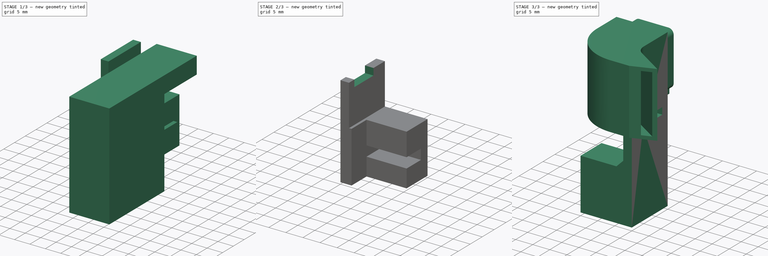
[diagram: build sequence overview — one tinted view per stage of 3, left to right]
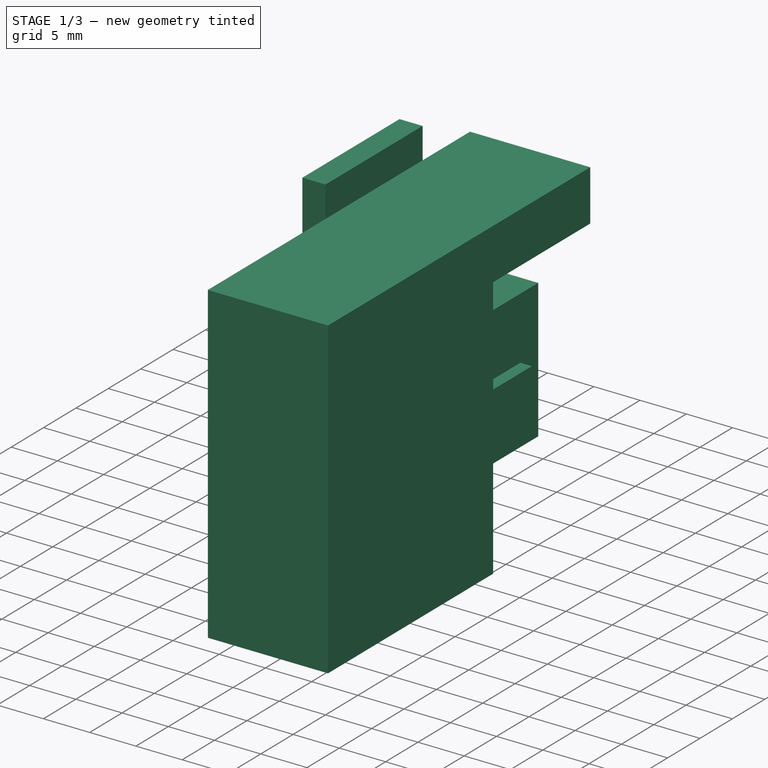
[diagram: stage 1 of 3 — iso view after this stage's code; geometry added in this stage tinted green]
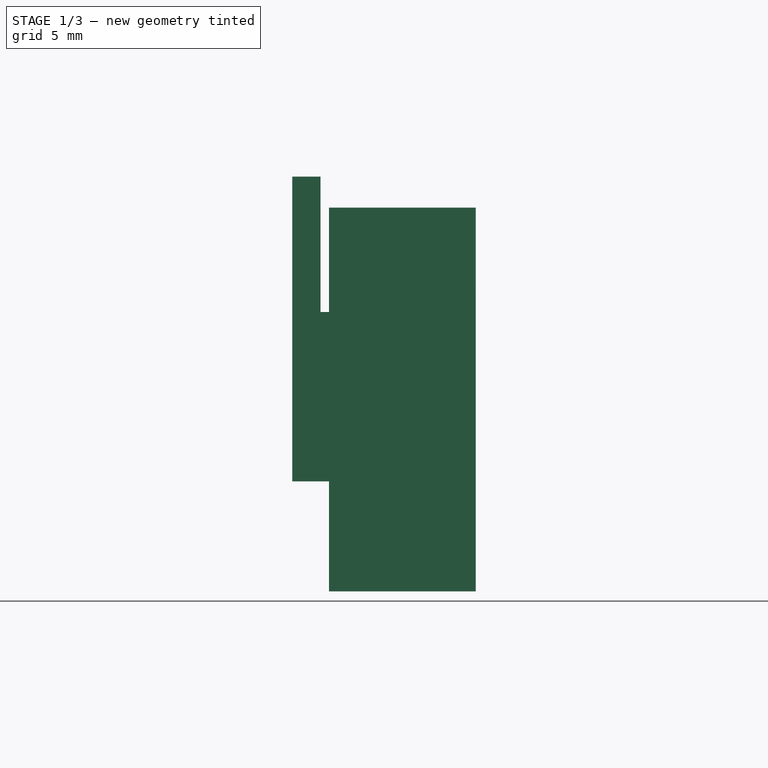
[diagram: stage 1 of 3 — front view after this stage's code; geometry added in this stage tinted green]
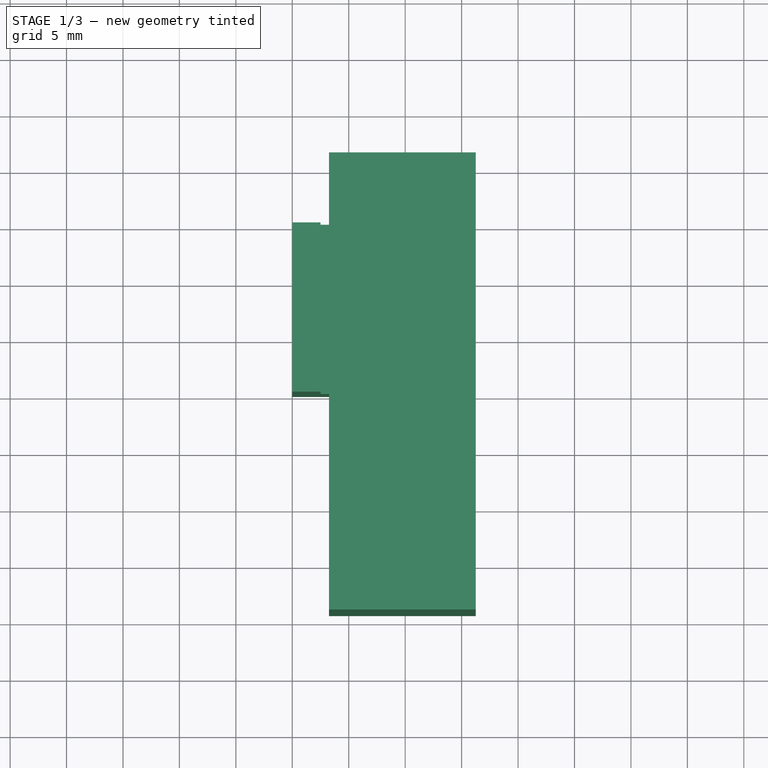
[diagram: stage 1 of 3 — top view after this stage's code; geometry added in this stage tinted green]
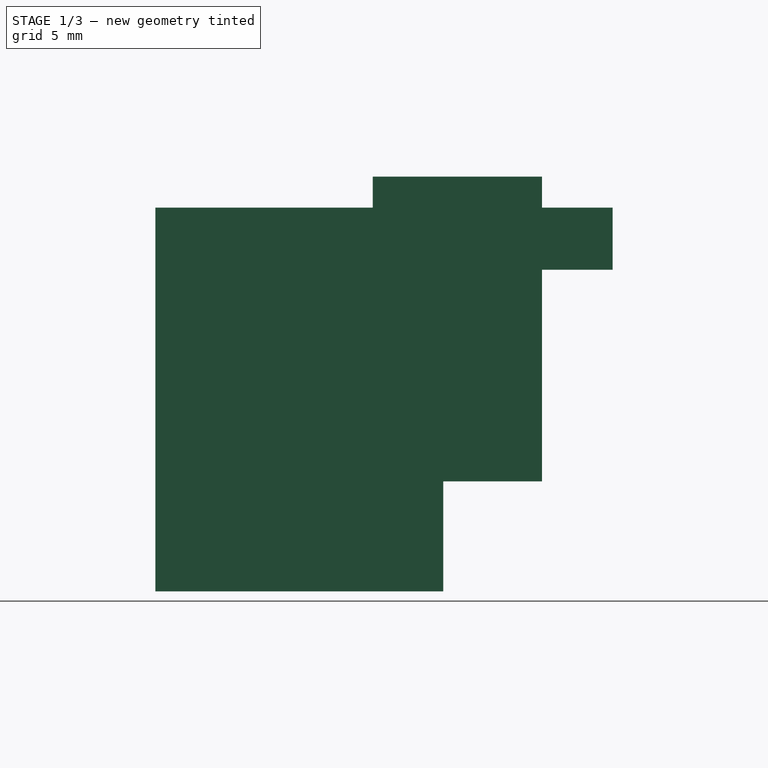
[diagram: stage 1 of 3 — right view after this stage's code; geometry added in this stage tinted green]
FCSTD DOCUMENT  (FreeCAD 0.15R4671 (Git))
Label: AutoBedLevel
License: CreativeCommons Attribution-ShareAlike
LicenseURL: http://creativecommons.org/licenses/by-sa/4.0/
objects: Sketcher::SketchObject×3, PartDesign::Pad×2, Part::Feature×1, Part::Offset×1, Part::Cut×1, PartDesign::Pocket×1, Part::FeaturePython×1, Part::MultiFuse×1, Part::Chamfer×1
note: 15 computed .brp shape members not serialized (recipe doc carries the construction recipe); baked Part::Feature solids carry a one-line shape summary decoded from their .brp

FEATURE [Sketcher::SketchObject] Sketch
  Placement = pos=(0,0,0) rot=(1,0,0;1.5708rad)
  sketch-geometry (6):
    g0: LineSegment StartX=0 StartY=0 StartZ=0 EndX=2.5 EndY=0 EndZ=0
    g1: LineSegment StartX=2.5 StartY=0 StartZ=0 EndX=2.5 EndY=-12 EndZ=0
    g2: LineSegment StartX=2.5 StartY=-12 StartZ=0 EndX=15 EndY=-12 EndZ=0
    g3: LineSegment StartX=15 StartY=-12 StartZ=0 EndX=15 EndY=-27 EndZ=0
    g4: LineSegment StartX=15 StartY=-27 StartZ=0 EndX=0 EndY=-27 EndZ=0
    g5: LineSegment StartX=0 StartY=-27 StartZ=0 EndX=0 EndY=0 EndZ=0
  constraints (17):
    c: Horizontal(g0)
    c: Coincident(g0,g1)
    c: Vertical(g1)
    c: Coincident(g1,g2)
    c: Coincident(g2,g3)
    c: Vertical(g3)
    c: Coincident(g3,g4)
    c: Coincident(g4,g5)
    c: Coincident(g5,g0)
    c: Vertical(g5)
    c: Horizontal(g4)
    c: Horizontal(g2)
    c: Coincident(g0,g-1)
    c: DistanceX(g0) = 2.5
    c: DistanceY(g5) = 27
    c: DistanceY(g1) = -12
    c: DistanceX(g4) = -15
FEATURE [PartDesign::Pad] Pad
  Length = 15
  Length2 = 100
  Placement = pos=(0,0,0) rot=(1,0,0;1.5708rad)
  Sketch = -> Sketch
  Type = 0
FEATURE [Sketcher::SketchObject] Sketch001
  Placement = pos=(3.5,6,-3) rot=(0.57735,0.57735,0.57735;2.0944rad)
  sketch-geometry (10):
    g0: LineSegment StartX=-40 StartY=-33.5 StartZ=0 EndX=-15 EndY=-33.5 EndZ=0
    g1: LineSegment StartX=-15 StartY=-33.5 StartZ=0 EndX=-15 EndY=-18.5 EndZ=0
    g2: LineSegment StartX=-15 StartY=-18.5 StartZ=0 EndX=-9 EndY=-18.5 EndZ=0
    g3: LineSegment StartX=-9 StartY=-18.5 StartZ=0 EndX=-9 EndY=-16 EndZ=0
    g4: LineSegment StartX=-9 StartY=-16 StartZ=0 EndX=-15 EndY=-16 EndZ=0
    g5: LineSegment StartX=-15 StartY=-16 StartZ=0 EndX=-15 EndY=-5 EndZ=0
    g6: LineSegment StartX=-15 StartY=-5 StartZ=0 EndX=0 EndY=-5 EndZ=0
    g7: LineSegment StartX=0 StartY=-5 StartZ=0 EndX=0 EndY=0 EndZ=0
    g8: LineSegment StartX=0 StartY=0 StartZ=0 EndX=-40 EndY=0 EndZ=0
    g9: LineSegment StartX=-40 StartY=0 StartZ=0 EndX=-40 EndY=-33.5 EndZ=0
  constraints (30):
    c: Horizontal(g0)
    c: Coincident(g0,g1)
    c: Vertical(g1)
    c: Coincident(g1,g2)
    c: Horizontal(g2)
    c: Coincident(g2,g3)
    c: Coincident(g3,g4)
    c: Horizontal(g4)
    c: Coincident(g4,g5)
    c: Vertical(g5)
    c: Horizontal(g6)
    c: Coincident(g6,g7)
    c: Vertical(g7)
    c: Coincident(g7,g8)
    c: Horizontal(g8)
    c: Coincident(g8,g9)
    c: Coincident(g9,g0)
    c: Vertical(g9)
    c: DistanceY(g1) = 15
    c: DistanceY(g3) = 2.5
    c: DistanceY(g5) = 11
    c: DistanceY(g7) = 5
    c: DistanceX(g8) = -40
    c: PointOnObject(g8,g-1)
    c: Vertical(g3)
    c: DistanceX(g0) = 25
    c: Coincident(g7,g-1)
    c: Coincident(g5,g6)
    c: DistanceX(g6) = 15
    c: DistanceX(g4) = -6
FEATURE [PartDesign::Pad] Pad001
  Length = 12.5
  Length2 = 100
  Placement = pos=(3.5,6,-3) rot=(0.57735,0.57735,0.57735;2.0944rad)
  Sketch = -> Sketch001
  Type = 0
FEATURE [Part::Feature] Tobera002_solid  label="Tobera"
  shape: bbox 25 x 26 x 19 mm, 2032 faces (baked)
FEATURE [Part::Offset] Offset
  Fill = false
  Intersection = false
  Join = 2
  Mode = 0
  SelfIntersection = false
  Source = -> Pad001
  Value = 0.25
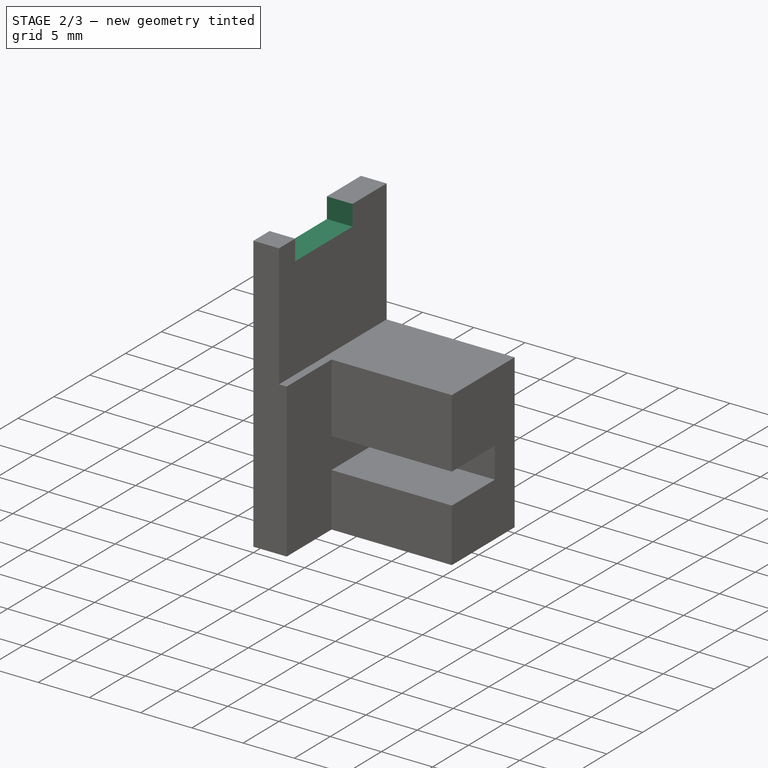
[diagram: stage 2 of 3 — iso view after this stage's code; geometry added in this stage tinted green]
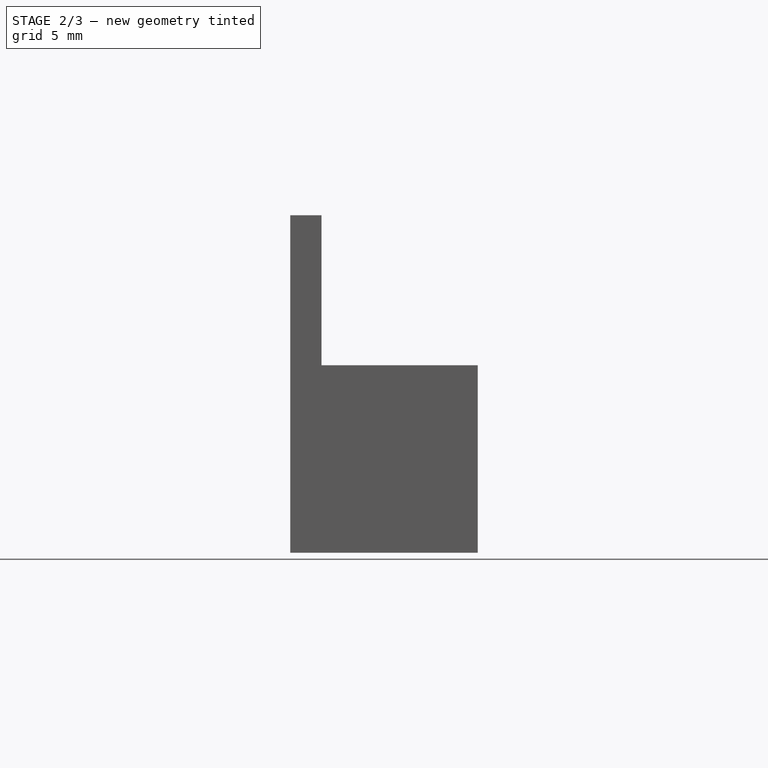
[diagram: stage 2 of 3 — front view after this stage's code; geometry added in this stage tinted green]
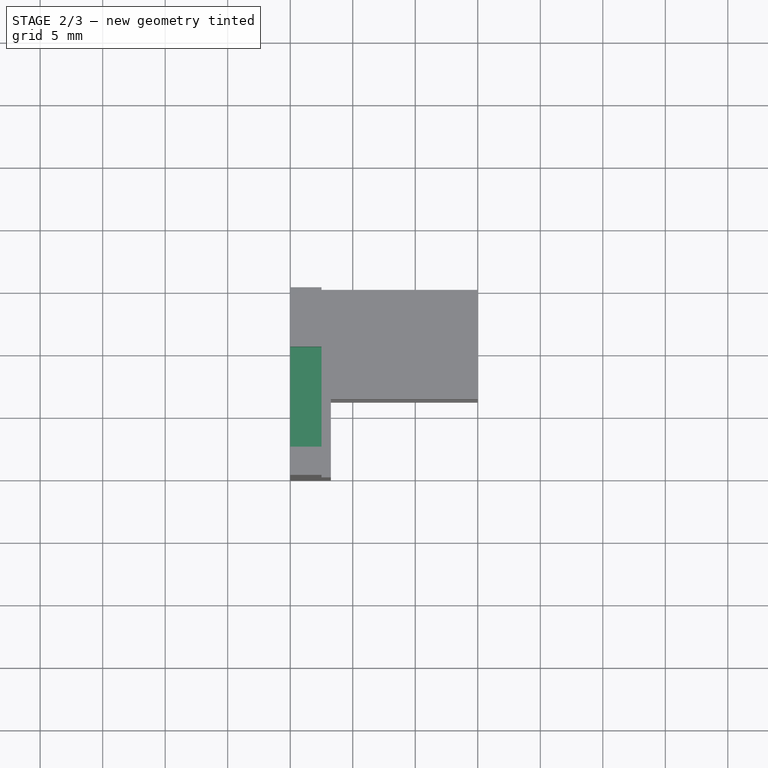
[diagram: stage 2 of 3 — top view after this stage's code; geometry added in this stage tinted green]
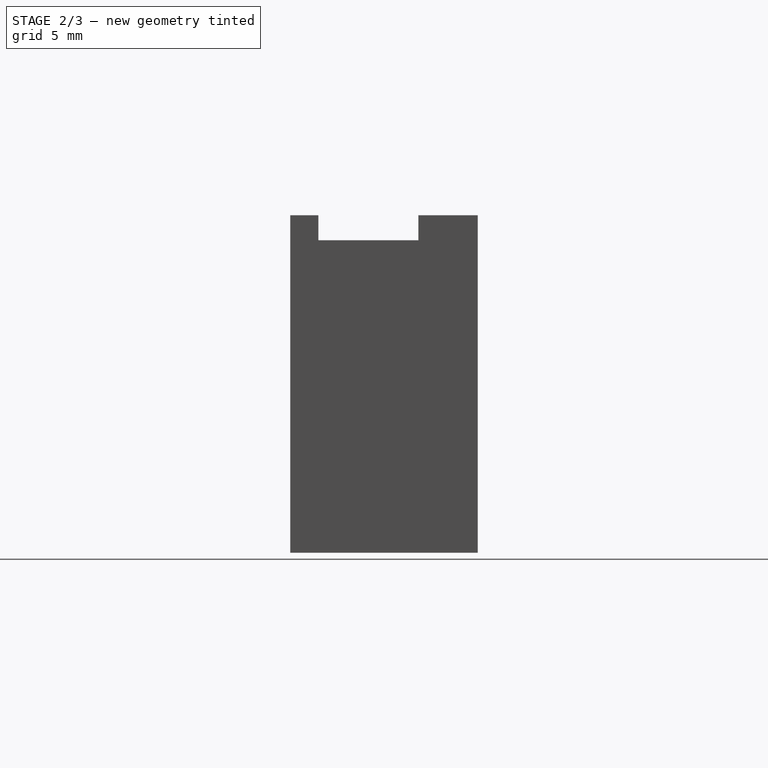
[diagram: stage 2 of 3 — right view after this stage's code; geometry added in this stage tinted green]
FEATURE [Part::Cut] Cut
  Base = -> Pad
  Tool = -> Offset
FEATURE [Sketcher::SketchObject] Sketch002
  ExternalGeometry = -> [Cut]
  Placement = pos=(2.5,0,0) rot=(0.57735,0.57735,0.57735;2.0944rad)
  Support = -> Cut [Face3]
  sketch-geometry (4):
    g0: LineSegment StartX=-12.75 StartY=0 StartZ=0 EndX=-4.75 EndY=0 EndZ=0
    g1: LineSegment StartX=-4.75 StartY=0 StartZ=0 EndX=-4.75 EndY=-2 EndZ=0
    g2: LineSegment StartX=-4.75 StartY=-2 StartZ=0 EndX=-12.75 EndY=-2 EndZ=0
    g3: LineSegment StartX=-12.75 StartY=-2 StartZ=0 EndX=-12.75 EndY=0 EndZ=0
  constraints (12):
    c: Coincident(g0,g1)
    c: Coincident(g1,g2)
    c: Coincident(g2,g3)
    c: Coincident(g3,g0)
    c: Horizontal(g0)
    c: Horizontal(g2)
    c: Vertical(g1)
    c: Vertical(g3)
    c: PointOnObject(g0,g-3)
    c: DistanceX(g0,g-3) = -2.25
    c: DistanceX(g2) = -8
    c: DistanceY(g1) = -2
FEATURE [PartDesign::Pocket] Pocket
  Length = 5
  Sketch = -> Sketch002
  Type = 0
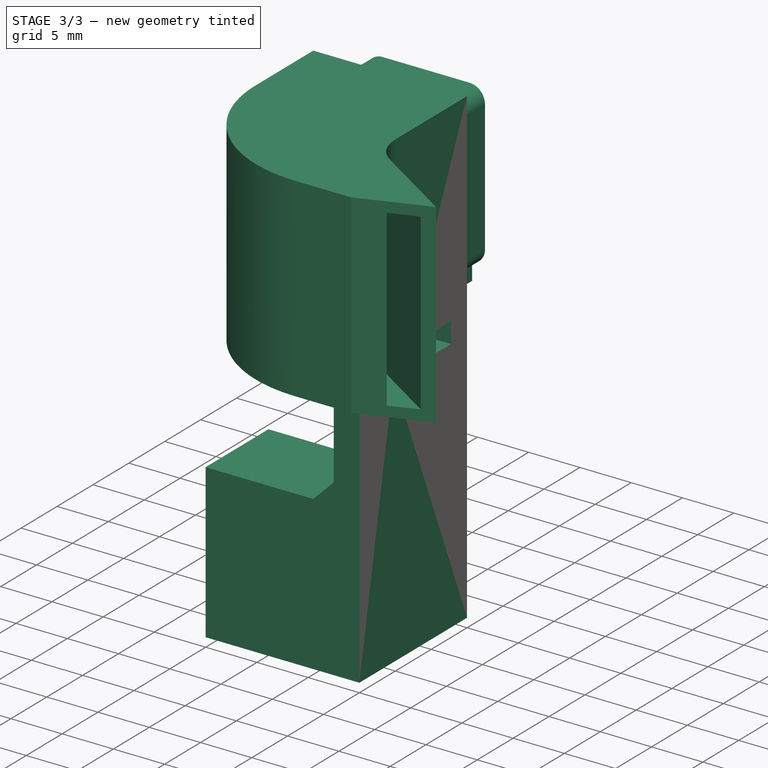
[diagram: stage 3 of 3 — iso view after this stage's code; geometry added in this stage tinted green]
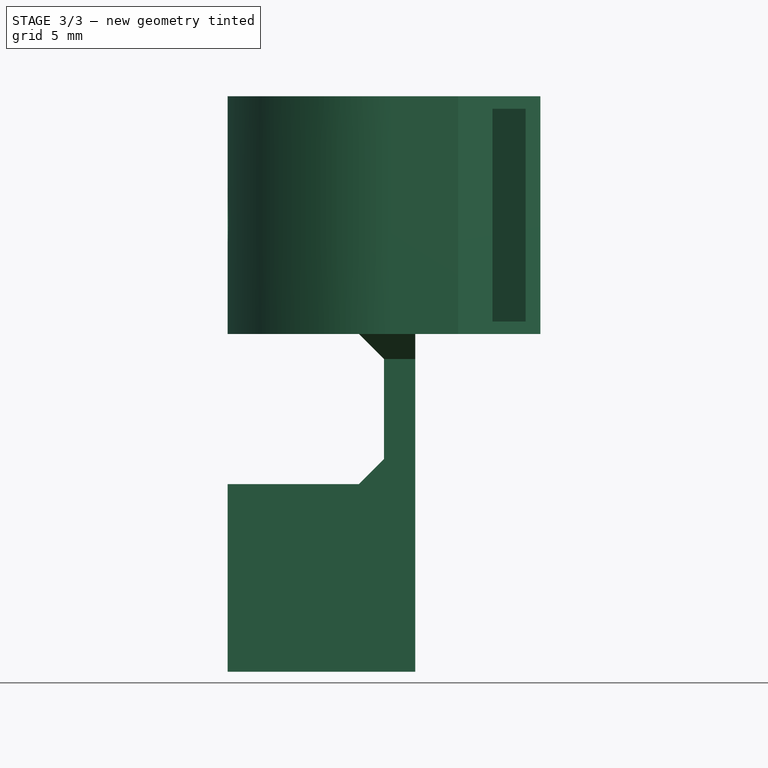
[diagram: stage 3 of 3 — front view after this stage's code; geometry added in this stage tinted green]
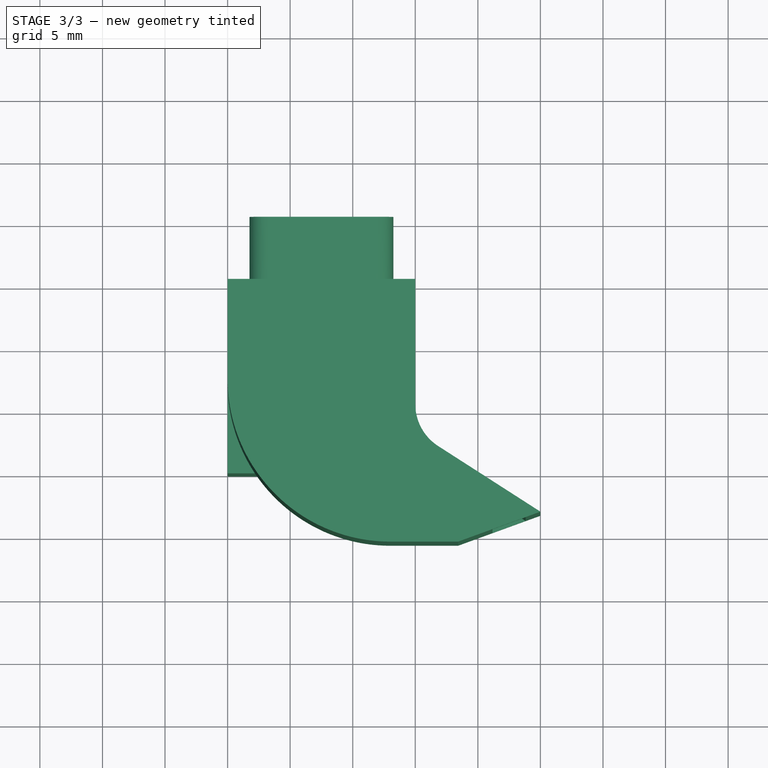
[diagram: stage 3 of 3 — top view after this stage's code; geometry added in this stage tinted green]
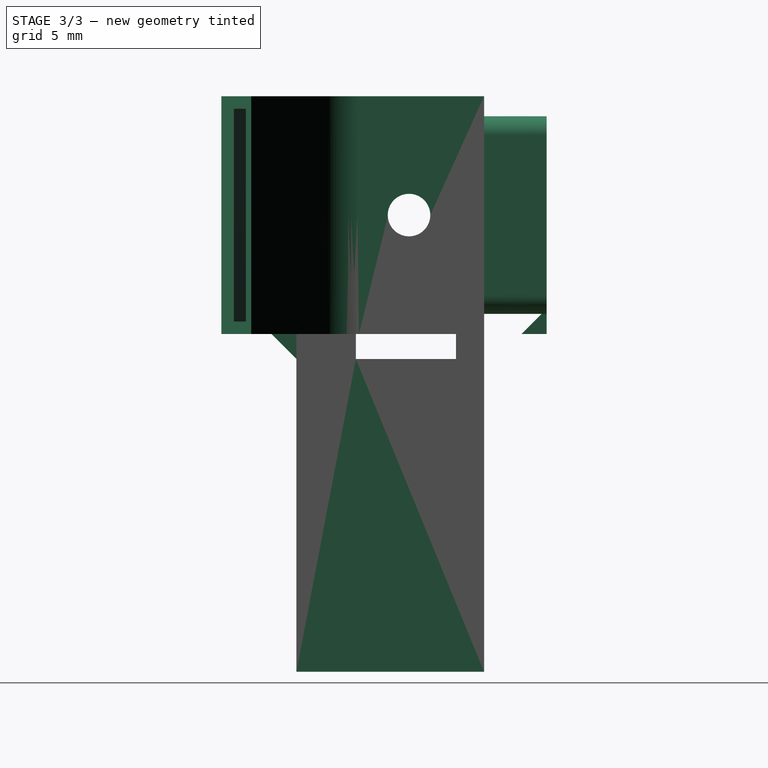
[diagram: stage 3 of 3 — right view after this stage's code; geometry added in this stage tinted green]
FEATURE [Part::FeaturePython] Clone  label="Clone of Pocket"  # Draft clone (typed FeaturePython)
  Objects = -> [Pocket]
  Placement = pos=(0,-15,-9.5) rot=(0,0,1;3.14159rad)
  Scale = (1,1,1)
FEATURE [Part::MultiFuse] Fusion
  Shapes = -> [Clone,Tobera002_solid]
FEATURE [Part::Chamfer] Chamfer
  Base = -> Fusion
  Edges = 4 edges r=2: [Edge553,Edge574,Edge641,Edge644]
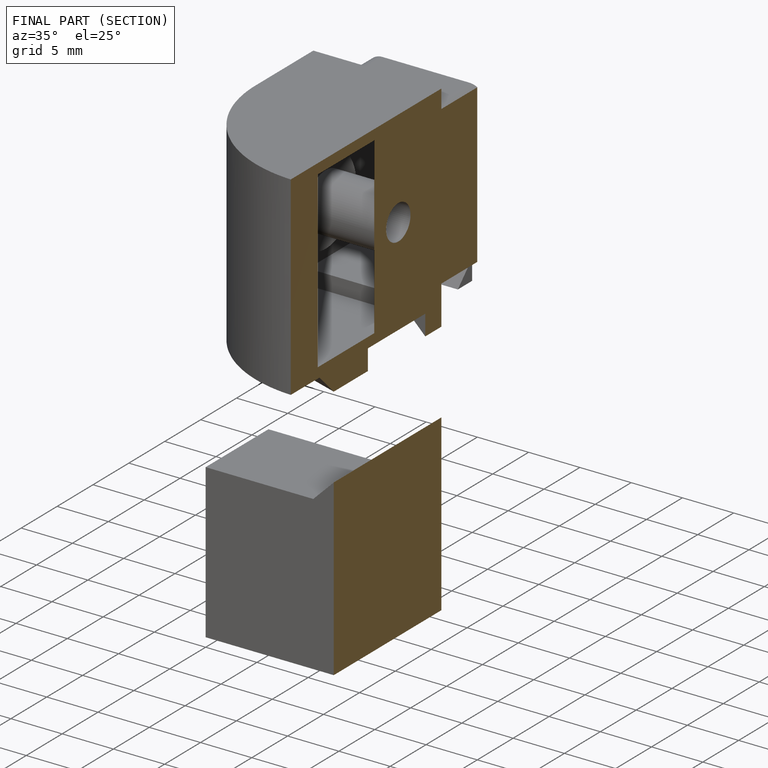
[diagram: finished part — half-section view (interior)]
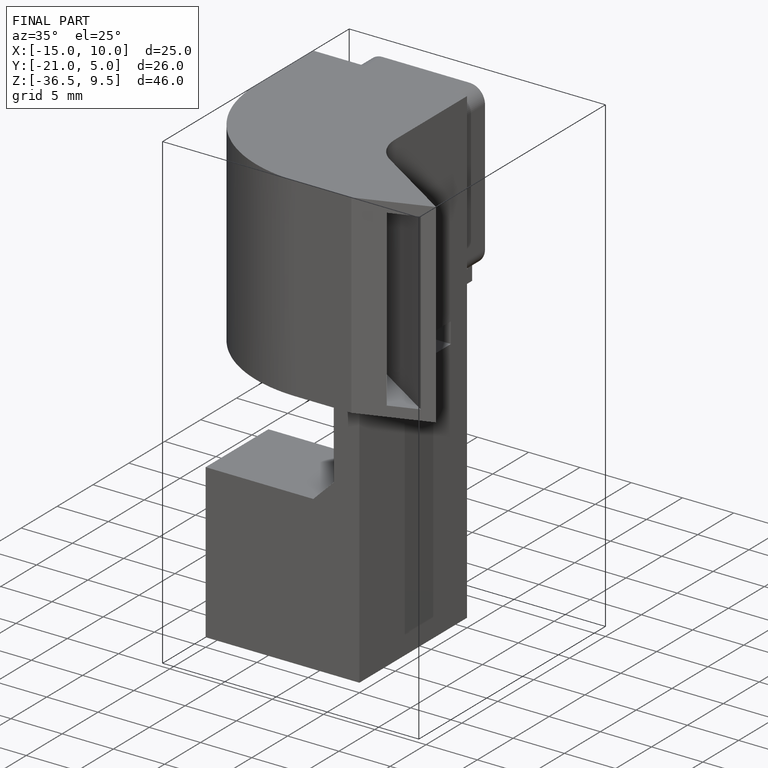
[diagram: finished part — iso view with bounding-box wireframe]
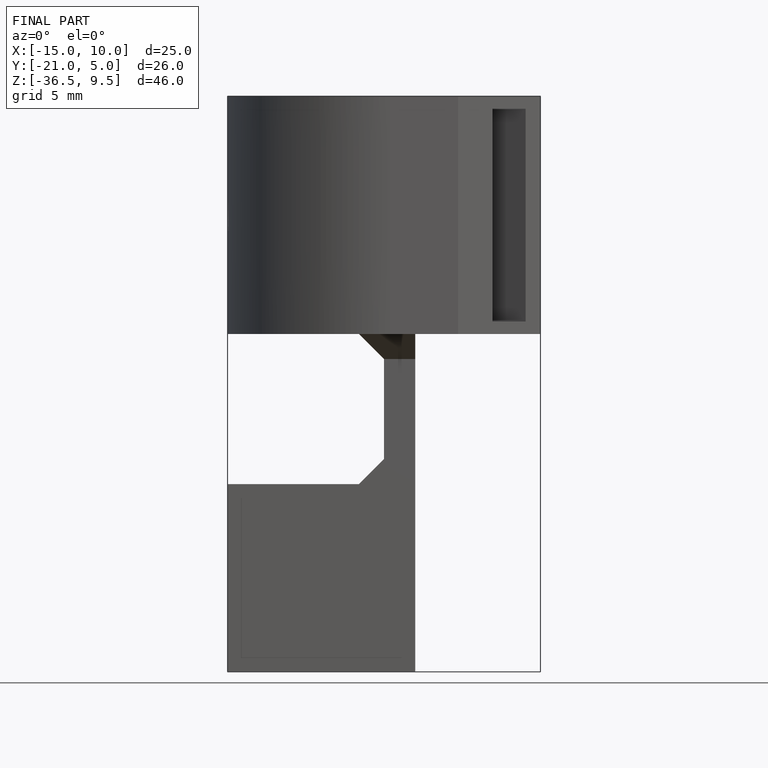
[diagram: finished part — front view with bounding-box wireframe]
